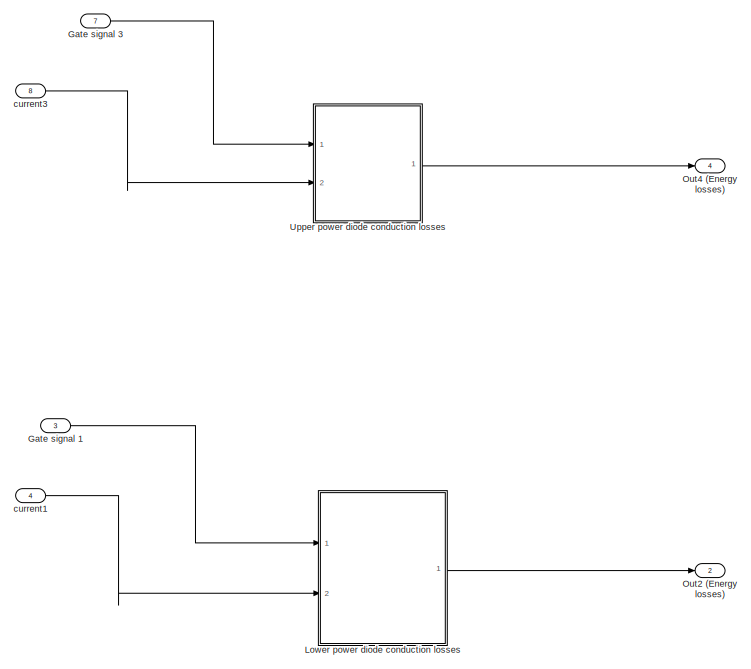
[diagram: root canvas - part 1/2, right side, full height]
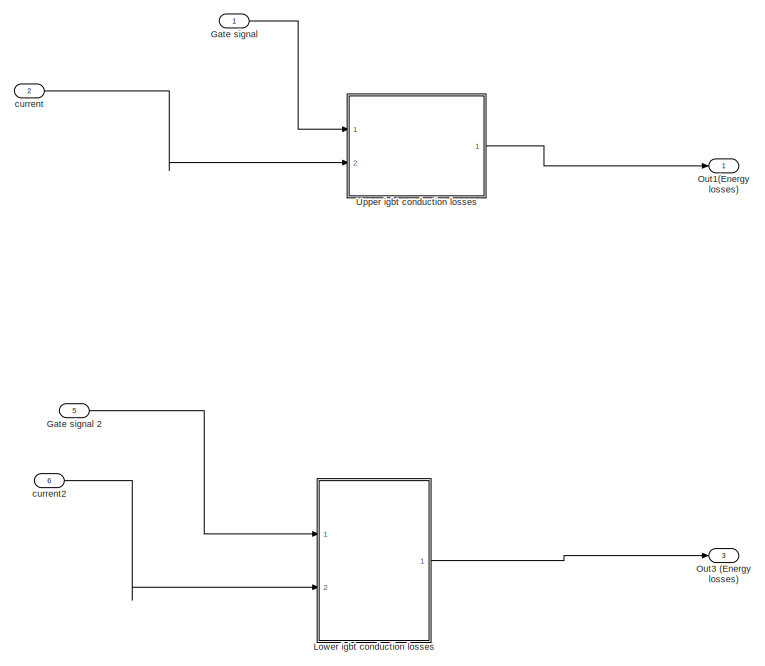
[diagram: root canvas - part 2/2, left side, full height]
MODEL slx_2f99a176ecb6
KIND model
CONFIG AbsTol = auto
CONFIG FixedStep = auto
CONFIG MaxStep = auto
CONFIG MinStep = auto
CONFIG RelTol = 1e-3
CONFIG SampleTimeConstraint = Unconstrained
CONFIG Solver = ode45
CONFIG SolverMode = Auto
CONFIG SolverName = ode45
CONFIG StartTime = 0.0
CONFIG StopTime = 10.0
BLOCK [Inport] Gate signal 
  IconDisplay = Port number
BLOCK [Inport] Gate signal 1
  IconDisplay = Port number
  Port = 3
BLOCK [Inport] Gate signal 2
  IconDisplay = Port number
  Port = 5
BLOCK [Inport] Gate signal 3
  IconDisplay = Port number
  Port = 7
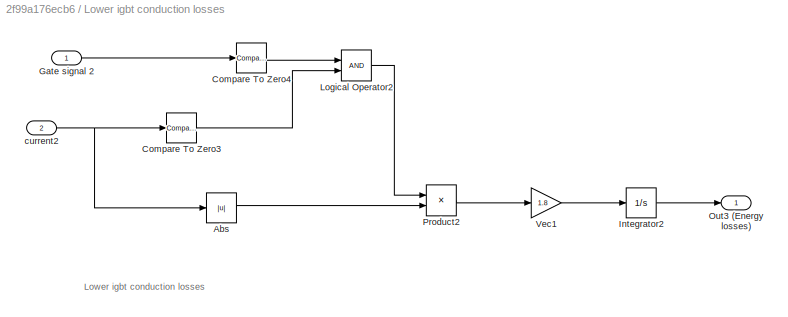
BLOCK [SubSystem] Lower igbt conduction losses
  Ports = [2, 1]
  RequestExecContextInheritance = off
BLOCK [Abs] Lower igbt conduction losses/Abs
  SaturateOnIntegerOverflow = off
BLOCK [Reference] Lower igbt conduction losses/Compare To Zero3  REF=simulink/Logic and Bit
Operations/Compare
To Zero
  OutDataTypeStr = boolean
  Ports = [1, 1]
  SourceBlock = simulink/Logic and Bit\nOperations/Compare\nTo Zero
  SourceType = Compare To Zero
  ZeroCross = on
  relop = <
BLOCK [Reference] Lower igbt conduction losses/Compare To Zero4  REF=simulink/Logic and Bit
Operations/Compare
To Zero
  OutDataTypeStr = boolean
  Ports = [1, 1]
  SourceBlock = simulink/Logic and Bit\nOperations/Compare\nTo Zero
  SourceType = Compare To Zero
  ZeroCross = on
  relop = ==
BLOCK [Inport] Lower igbt conduction losses/Gate signal 2
  IconDisplay = Port number
BLOCK [Integrator] Lower igbt conduction losses/Integrator2
  Ports = [1, 1]
BLOCK [Logic] Lower igbt conduction losses/Logical Operator2
  AllPortsSameDT = off
  OutDataTypeStr = boolean
  Ports = [2, 1]
BLOCK [Outport] Lower igbt conduction losses/Out3 (Energy losses)
  IconDisplay = Port number
BLOCK [Product] Lower igbt conduction losses/Product2
  InputSameDT = off
  OutDataTypeStr = Inherit: Inherit via internal rule
  Ports = [2, 1]
  RndMeth = Floor
  SaturateOnIntegerOverflow = off
BLOCK [Gain] Lower igbt conduction losses/Vec1
  Gain = 1.8
  OutDataTypeStr = Inherit: Inherit via internal rule
  ParamDataTypeStr = Inherit: Inherit via internal rule
  SaturateOnIntegerOverflow = off
BLOCK [Inport] Lower igbt conduction losses/current2
  IconDisplay = Port number
  Port = 2
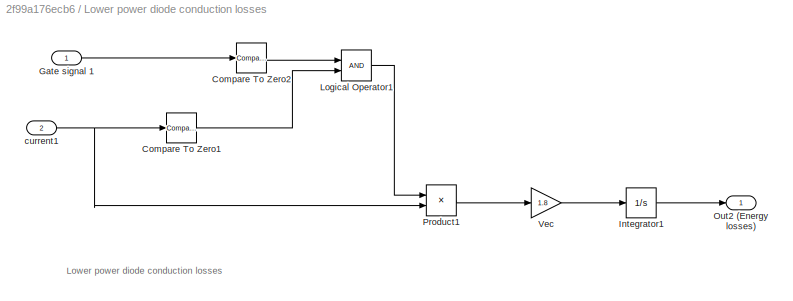
BLOCK [SubSystem] Lower power diode conduction losses
  Ports = [2, 1]
  RequestExecContextInheritance = off
BLOCK [Reference] Lower power diode conduction losses/Compare To Zero1  REF=simulink/Logic and Bit
Operations/Compare
To Zero
  OutDataTypeStr = boolean
  Ports = [1, 1]
  SourceBlock = simulink/Logic and Bit\nOperations/Compare\nTo Zero
  SourceType = Compare To Zero
  ZeroCross = on
  relop = >
BLOCK [Reference] Lower power diode conduction losses/Compare To Zero2  REF=simulink/Logic and Bit
Operations/Compare
To Zero
  OutDataTypeStr = boolean
  Ports = [1, 1]
  SourceBlock = simulink/Logic and Bit\nOperations/Compare\nTo Zero
  SourceType = Compare To Zero
  ZeroCross = on
  relop = ==
BLOCK [Inport] Lower power diode conduction losses/Gate signal 1
  IconDisplay = Port number
BLOCK [Integrator] Lower power diode conduction losses/Integrator1
  Ports = [1, 1]
BLOCK [Logic] Lower power diode conduction losses/Logical Operator1
  AllPortsSameDT = off
  OutDataTypeStr = boolean
  Ports = [2, 1]
BLOCK [Outport] Lower power diode conduction losses/Out2 (Energy losses)
  IconDisplay = Port number
BLOCK [Product] Lower power diode conduction losses/Product1
  InputSameDT = off
  OutDataTypeStr = Inherit: Inherit via internal rule
  Ports = [2, 1]
  RndMeth = Floor
  SaturateOnIntegerOverflow = off
BLOCK [Gain] Lower power diode conduction losses/Vec
  Gain = 1.8
  OutDataTypeStr = Inherit: Inherit via internal rule
  ParamDataTypeStr = Inherit: Inherit via internal rule
  SaturateOnIntegerOverflow = off
BLOCK [Inport] Lower power diode conduction losses/current1
  IconDisplay = Port number
  Port = 2
BLOCK [Outport] Out1(Energy losses)
  IconDisplay = Port number
BLOCK [Outport] Out2 (Energy losses)
  IconDisplay = Port number
  Port = 2
BLOCK [Outport] Out3 (Energy losses)
  IconDisplay = Port number
  Port = 3
BLOCK [Outport] Out4 (Energy losses)
  IconDisplay = Port number
  Port = 4
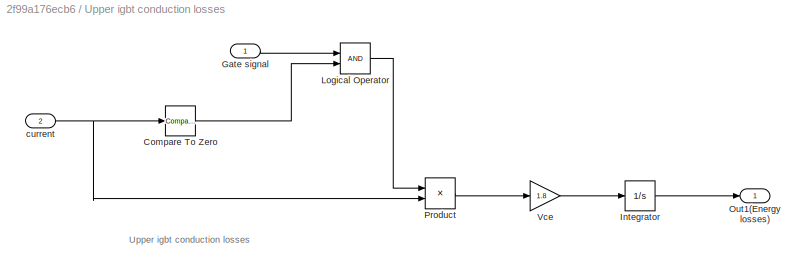
BLOCK [SubSystem] Upper igbt conduction losses
  Ports = [2, 1]
  RequestExecContextInheritance = off
BLOCK [Reference] Upper igbt conduction losses/Compare To Zero  REF=simulink/Logic and Bit
Operations/Compare
To Zero
  OutDataTypeStr = boolean
  Ports = [1, 1]
  SourceBlock = simulink/Logic and Bit\nOperations/Compare\nTo Zero
  SourceType = Compare To Zero
  ZeroCross = on
  relop = >
BLOCK [Inport] Upper igbt conduction losses/Gate signal 
  IconDisplay = Port number
BLOCK [Integrator] Upper igbt conduction losses/Integrator
  Ports = [1, 1]
BLOCK [Logic] Upper igbt conduction losses/Logical Operator
  AllPortsSameDT = off
  OutDataTypeStr = boolean
  Ports = [2, 1]
BLOCK [Outport] Upper igbt conduction losses/Out1(Energy losses)
  IconDisplay = Port number
BLOCK [Product] Upper igbt conduction losses/Product
  InputSameDT = off
  OutDataTypeStr = Inherit: Inherit via internal rule
  Ports = [2, 1]
  RndMeth = Floor
  SaturateOnIntegerOverflow = off
BLOCK [Gain] Upper igbt conduction losses/Vce
  Gain = 1.8
  OutDataTypeStr = Inherit: Inherit via internal rule
  ParamDataTypeStr = Inherit: Inherit via internal rule
  SaturateOnIntegerOverflow = off
BLOCK [Inport] Upper igbt conduction losses/current
  IconDisplay = Port number
  Port = 2
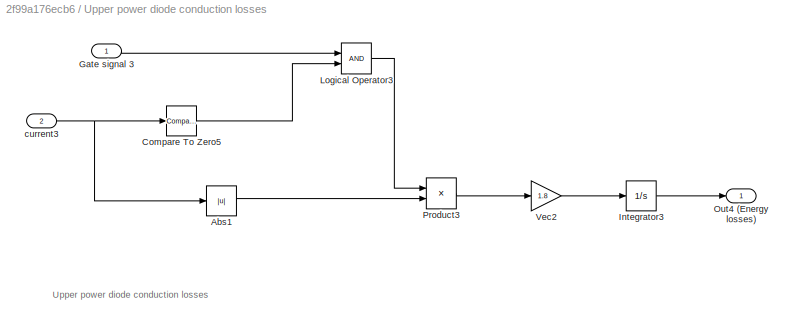
BLOCK [SubSystem] Upper power diode conduction losses
  Ports = [2, 1]
  RequestExecContextInheritance = off
BLOCK [Abs] Upper power diode conduction losses/Abs1
  SaturateOnIntegerOverflow = off
BLOCK [Reference] Upper power diode conduction losses/Compare To Zero5  REF=simulink/Logic and Bit
Operations/Compare
To Zero
  OutDataTypeStr = boolean
  Ports = [1, 1]
  SourceBlock = simulink/Logic and Bit\nOperations/Compare\nTo Zero
  SourceType = Compare To Zero
  ZeroCross = on
  relop = <
BLOCK [Inport] Upper power diode conduction losses/Gate signal 3
  IconDisplay = Port number
BLOCK [Integrator] Upper power diode conduction losses/Integrator3
  Ports = [1, 1]
BLOCK [Logic] Upper power diode conduction losses/Logical Operator3
  AllPortsSameDT = off
  OutDataTypeStr = boolean
  Ports = [2, 1]
BLOCK [Outport] Upper power diode conduction losses/Out4 (Energy losses)
  IconDisplay = Port number
BLOCK [Product] Upper power diode conduction losses/Product3
  InputSameDT = off
  OutDataTypeStr = Inherit: Inherit via internal rule
  Ports = [2, 1]
  RndMeth = Floor
  SaturateOnIntegerOverflow = off
BLOCK [Gain] Upper power diode conduction losses/Vec2
  Gain = 1.8
  OutDataTypeStr = Inherit: Inherit via internal rule
  ParamDataTypeStr = Inherit: Inherit via internal rule
  SaturateOnIntegerOverflow = off
BLOCK [Inport] Upper power diode conduction losses/current3
  IconDisplay = Port number
  Port = 2
BLOCK [Inport] current
  IconDisplay = Port number
  Port = 2
BLOCK [Inport] current1
  IconDisplay = Port number
  Port = 4
BLOCK [Inport] current2
  IconDisplay = Port number
  Port = 6
BLOCK [Inport] current3
  IconDisplay = Port number
  Port = 8
ANNOTATION Lower igbt conduction losses: Lower igbt conduction losses
ANNOTATION Lower power diode conduction losses: Lower power diode conduction losses
ANNOTATION Upper igbt conduction losses: Upper igbt conduction losses
ANNOTATION Upper power diode conduction losses: Upper power diode conduction losses
LINE Gate signal 1:1 -> Lower power diode conduction losses:1
LINE Gate signal 2:1 -> Lower igbt conduction losses:1
LINE Gate signal 3:1 -> Upper power diode conduction losses:1
LINE Gate signal :1 -> Upper igbt conduction losses:1
LINE Lower igbt conduction losses/Abs:1 -> Lower igbt conduction losses/Product2:2
LINE Lower igbt conduction losses/Compare To Zero3:1 -> Lower igbt conduction losses/Logical Operator2:2
LINE Lower igbt conduction losses/Compare To Zero4:1 -> Lower igbt conduction losses/Logical Operator2:1
LINE Lower igbt conduction losses/Gate signal 2:1 -> Lower igbt conduction losses/Compare To Zero4:1
LINE Lower igbt conduction losses/Integrator2:1 -> Lower igbt conduction losses/Out3 (Energy losses):1
LINE Lower igbt conduction losses/Logical Operator2:1 -> Lower igbt conduction losses/Product2:1
LINE Lower igbt conduction losses/Product2:1 -> Lower igbt conduction losses/Vec1:1
LINE Lower igbt conduction losses/Vec1:1 -> Lower igbt conduction losses/Integrator2:1
NET Lower igbt conduction losses/current2:1 -> Lower igbt conduction losses/Abs:1, Lower igbt conduction losses/Compare To Zero3:1
LINE Lower igbt conduction losses:1 -> Out3 (Energy losses):1
LINE Lower power diode conduction losses/Compare To Zero1:1 -> Lower power diode conduction losses/Logical Operator1:2
LINE Lower power diode conduction losses/Compare To Zero2:1 -> Lower power diode conduction losses/Logical Operator1:1
LINE Lower power diode conduction losses/Gate signal 1:1 -> Lower power diode conduction losses/Compare To Zero2:1
LINE Lower power diode conduction losses/Integrator1:1 -> Lower power diode conduction losses/Out2 (Energy losses):1
LINE Lower power diode conduction losses/Logical Operator1:1 -> Lower power diode conduction losses/Product1:1
LINE Lower power diode conduction losses/Product1:1 -> Lower power diode conduction losses/Vec:1
LINE Lower power diode conduction losses/Vec:1 -> Lower power diode conduction losses/Integrator1:1
NET Lower power diode conduction losses/current1:1 -> Lower power diode conduction losses/Compare To Zero1:1, Lower power diode conduction losses/Product1:2
LINE Lower power diode conduction losses:1 -> Out2 (Energy losses):1
LINE Upper igbt conduction losses/Compare To Zero:1 -> Upper igbt conduction losses/Logical Operator:2
LINE Upper igbt conduction losses/Gate signal :1 -> Upper igbt conduction losses/Logical Operator:1
LINE Upper igbt conduction losses/Integrator:1 -> Upper igbt conduction losses/Out1(Energy losses):1
LINE Upper igbt conduction losses/Logical Operator:1 -> Upper igbt conduction losses/Product:1
LINE Upper igbt conduction losses/Product:1 -> Upper igbt conduction losses/Vce:1
LINE Upper igbt conduction losses/Vce:1 -> Upper igbt conduction losses/Integrator:1
NET Upper igbt conduction losses/current:1 -> Upper igbt conduction losses/Compare To Zero:1, Upper igbt conduction losses/Product:2
LINE Upper igbt conduction losses:1 -> Out1(Energy losses):1
LINE Upper power diode conduction losses/Abs1:1 -> Upper power diode conduction losses/Product3:2
LINE Upper power diode conduction losses/Compare To Zero5:1 -> Upper power diode conduction losses/Logical Operator3:2
LINE Upper power diode conduction losses/Gate signal 3:1 -> Upper power diode conduction losses/Logical Operator3:1
LINE Upper power diode conduction losses/Integrator3:1 -> Upper power diode conduction losses/Out4 (Energy losses):1
LINE Upper power diode conduction losses/Logical Operator3:1 -> Upper power diode conduction losses/Product3:1
LINE Upper power diode conduction losses/Product3:1 -> Upper power diode conduction losses/Vec2:1
LINE Upper power diode conduction losses/Vec2:1 -> Upper power diode conduction losses/Integrator3:1
NET Upper power diode conduction losses/current3:1 -> Upper power diode conduction losses/Abs1:1, Upper power diode conduction losses/Compare To Zero5:1
LINE Upper power diode conduction losses:1 -> Out4 (Energy losses):1
LINE current1:1 -> Lower power diode conduction losses:2
LINE current2:1 -> Lower igbt conduction losses:2
LINE current3:1 -> Upper power diode conduction losses:2
LINE current:1 -> Upper igbt conduction losses:2
note: NET lines group one-source signal fan-out (src -> all destinations, sorted); 1:1 wires keep LINE
